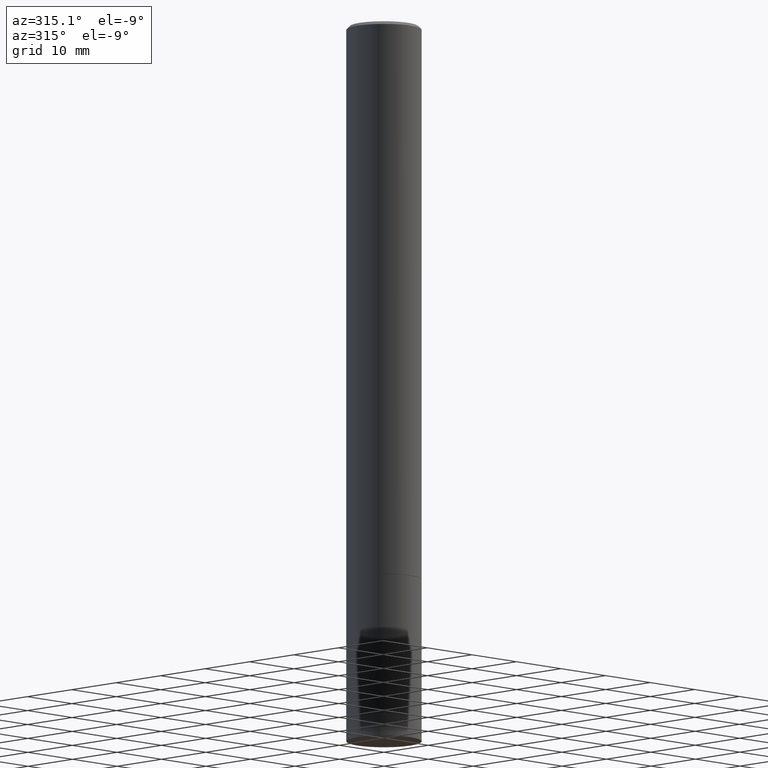
[diagram: clean part render]
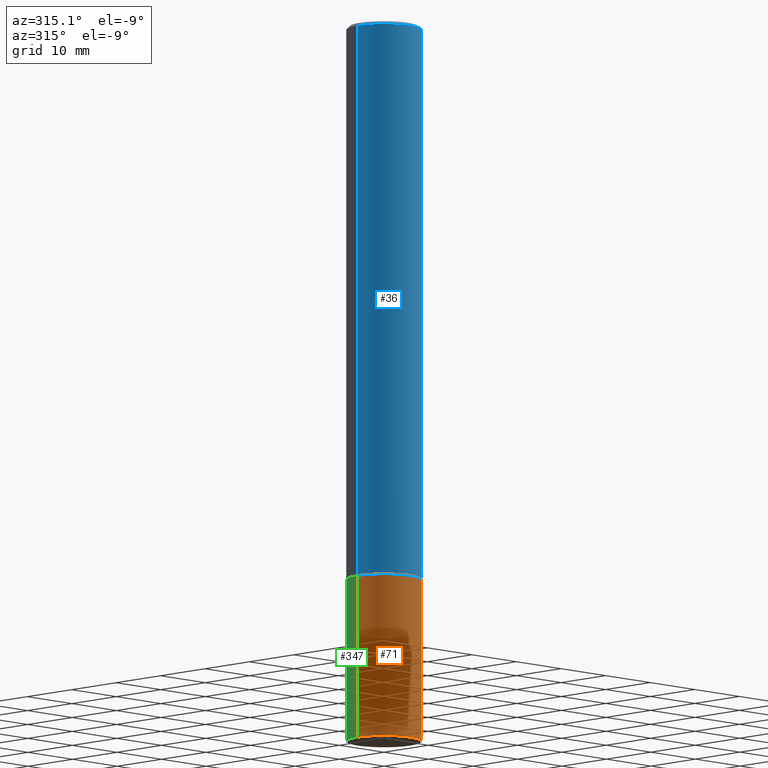
[diagram: same view with three faces highlighted in distinct colors, each labeled with its STEP entity id]
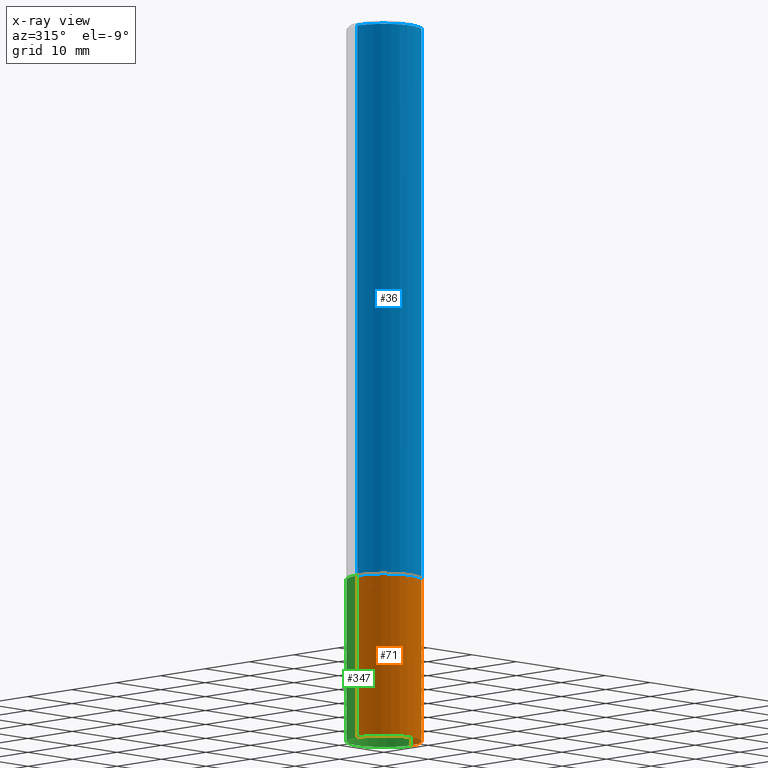
[diagram: x-ray of the same camera — body ghosted, the three highlighted faces saturated]
A machine part, auxiliary view with three faces highlighted in distinct colors.
The next image is the same camera in x-ray (body ghosted, the three faces saturated) — at least one of them is partly hidden behind the body in this view.
Their STEP definitions:

[orange] entity #71 — the highlighted cylindrical surface (partial cylindrical patch) has radius 5.9995 mm, axis along (-0, 0, 1).
#15 = CARTESIAN_POINT ( 'NONE',  ( -0.2361999999999999933, -1.234278881866094703E-14, -4.527599999999999625 ) ) ;
#21 = DIRECTION ( 'NONE',  ( -2.445468806185136877E-29, 3.491481338843145188E-15, 1.000000000000000000 ) ) ;
#43 = LINE ( 'NONE', #97, #351 ) ;
#45 = DIRECTION ( 'NONE',  ( -2.445468806185136877E-29, 3.491481338843145188E-15, 1.000000000000000000 ) ) ;
#47 = CYLINDRICAL_SURFACE ( 'NONE', #201, 0.2361999999999999933 ) ;
#54 = LINE ( 'NONE', #79, #205 ) ;
#64 = DIRECTION ( 'NONE',  ( 1.000000000000000000, -6.982962677686265133E-15, 0.000000000000000000 ) ) ;
#68 = DIRECTION ( 'NONE',  ( 1.000000000000000000, -6.982962677686265133E-15, 0.000000000000000000 ) ) ;
#71 = ADVANCED_FACE ( 'NONE', ( #267 ), #47, .T. ) ;
#79 = CARTESIAN_POINT ( 'NONE',  ( 0.2361999999999999933, -1.649375784469496131E-15, 1.151752954443000088E-29 ) ) ;
#82 = VERTEX_POINT ( 'NONE', #204 ) ;
#97 = CARTESIAN_POINT ( 'NONE',  ( -0.2361999999999999933, 1.678301941865356591E-15, -1.161852468318208757E-29 ) ) ;
#100 = DIRECTION ( 'NONE',  ( -2.445468806185136597E-29, 3.491481338843145583E-15, 1.000000000000000000 ) ) ;
#110 = CIRCLE ( 'NONE', #297, 0.2361999999999999933 ) ;
#116 = EDGE_CURVE ( 'NONE', #359, #163, #110, .T. ) ;
#160 = VERTEX_POINT ( 'NONE', #295 ) ;
#163 = VERTEX_POINT ( 'NONE', #329 ) ;
#165 = ORIENTED_EDGE ( 'NONE', *, *, #116, .T. ) ;
#173 = ORIENTED_EDGE ( 'NONE', *, *, #237, .T. ) ;
#186 = CARTESIAN_POINT ( 'NONE',  ( 0.000000000000000000, 0.000000000000000000, 0.000000000000000000 ) ) ;
#188 = DIRECTION ( 'NONE',  ( 1.000000000000000000, -6.982962677686266711E-15, 4.876176775795936353E-29 ) ) ;
#189 = AXIS2_PLACEMENT_3D ( 'NONE', #328, #100, #64 ) ;
#193 = ORIENTED_EDGE ( 'NONE', *, *, #354, .F. ) ;
#201 = AXIS2_PLACEMENT_3D ( 'NONE', #186, #244, #188 ) ;
#204 = CARTESIAN_POINT ( 'NONE',  ( 0.2361999999999999933, -1.388352639577587632E-14, -3.503999999999999559 ) ) ;
#205 = VECTOR ( 'NONE', #21, 39.37007874015748143 ) ;
#209 = DIRECTION ( 'NONE',  ( -2.445468806185136597E-29, 3.491481338843145583E-15, 1.000000000000000000 ) ) ;
#237 = EDGE_CURVE ( 'NONE', #163, #82, #54, .T. ) ;
#238 = CARTESIAN_POINT ( 'NONE',  ( 1.107210456688382298E-28, -1.580803090974622389E-14, -4.527599999999999625 ) ) ;
#244 = DIRECTION ( 'NONE',  ( -2.445468806185136597E-29, 3.491481338843145583E-15, 1.000000000000000000 ) ) ;
#257 = ORIENTED_EDGE ( 'NONE', *, *, #335, .F. ) ;
#260 = EDGE_LOOP ( 'NONE', ( #193, #165, #173, #257 ) ) ;
#267 = FACE_OUTER_BOUND ( 'NONE', #260, .T. ) ;
#293 = CIRCLE ( 'NONE', #189, 0.2361999999999999933 ) ;
#295 = CARTESIAN_POINT ( 'NONE',  ( -0.2361999999999999933, -1.234278881866094703E-14, -3.503999999999999559 ) ) ;
#297 = AXIS2_PLACEMENT_3D ( 'NONE', #238, #209, #68 ) ;
#328 = CARTESIAN_POINT ( 'NONE',  ( 8.568922696872717137E-29, -1.223415061130638137E-14, -3.503999999999999559 ) ) ;
#329 = CARTESIAN_POINT ( 'NONE',  ( 0.2361999999999999933, -1.745740669421572042E-14, -4.527599999999999625 ) ) ;
#335 = EDGE_CURVE ( 'NONE', #160, #82, #293, .T. ) ;
#351 = VECTOR ( 'NONE', #45, 39.37007874015748143 ) ;
#354 = EDGE_CURVE ( 'NONE', #359, #160, #43, .T. ) ;
#359 = VERTEX_POINT ( 'NONE', #15 ) ;

[blue] entity #36 — the highlighted cylindrical surface (partial cylindrical patch) has radius 5.9995 mm, axis along (-0, 0, 1).
#7 = LINE ( 'NONE', #111, #307 ) ;
#14 = CIRCLE ( 'NONE', #133, 0.2361999999999999933 ) ;
#24 = EDGE_LOOP ( 'NONE', ( #275, #115, #252, #57 ) ) ;
#25 = EDGE_CURVE ( 'NONE', #357, #364, #7, .T. ) ;
#36 = ADVANCED_FACE ( 'NONE', ( #69 ), #208, .T. ) ;
#38 = CARTESIAN_POINT ( 'NONE',  ( 0.000000000000000000, 0.000000000000000000, 0.000000000000000000 ) ) ;
#40 = CARTESIAN_POINT ( 'NONE',  ( -0.2361999999999995214, 1.579546157692629677E-15, -0.02000000000000006287 ) ) ;
#57 = ORIENTED_EDGE ( 'NONE', *, *, #268, .F. ) ;
#69 = FACE_OUTER_BOUND ( 'NONE', #24, .T. ) ;
#73 = VECTOR ( 'NONE', #317, 39.37007874015748143 ) ;
#89 = CARTESIAN_POINT ( 'NONE',  ( -0.2361999999999997712, 1.678301941865355014E-15, -1.161852468318207636E-29 ) ) ;
#104 = DIRECTION ( 'NONE',  ( -2.445468806185136597E-29, 3.491481338843145583E-15, 1.000000000000000000 ) ) ;
#111 = CARTESIAN_POINT ( 'NONE',  ( 0.2361999999999997712, -1.649375784469494553E-15, 1.151752954442998827E-29 ) ) ;
#112 = DIRECTION ( 'NONE',  ( -2.445468806185136877E-29, 3.491481338843145188E-15, 1.000000000000000000 ) ) ;
#113 = AXIS2_PLACEMENT_3D ( 'NONE', #38, #145, #146 ) ;
#115 = ORIENTED_EDGE ( 'NONE', *, *, #360, .T. ) ;
#117 = EDGE_CURVE ( 'NONE', #136, #123, #184, .T. ) ;
#118 = CARTESIAN_POINT ( 'NONE',  ( 8.566477228066533777E-29, -1.223065912996753836E-14, -3.502999999999999670 ) ) ;
#121 = CARTESIAN_POINT ( 'NONE',  ( 0.2361999999999995214, -1.690279253850495418E-15, -0.02000000000000006287 ) ) ;
#123 = VERTEX_POINT ( 'NONE', #40 ) ;
#133 = AXIS2_PLACEMENT_3D ( 'NONE', #118, #241, #185 ) ;
#136 = VERTEX_POINT ( 'NONE', #239 ) ;
#145 = DIRECTION ( 'NONE',  ( -2.445468806185136597E-29, 3.491481338843145583E-15, 1.000000000000000000 ) ) ;
#146 = DIRECTION ( 'NONE',  ( 1.000000000000000000, -6.982962677686266711E-15, 4.876176775795935232E-29 ) ) ;
#156 = CARTESIAN_POINT ( 'NONE',  ( 0.2361999999999999933, -1.388003491443703489E-14, -3.502999999999999670 ) ) ;
#161 = CARTESIAN_POINT ( 'NONE',  ( 4.890937612370288923E-31, -6.982962677686312563E-17, -0.02000000000000006287 ) ) ;
#184 = LINE ( 'NONE', #89, #73 ) ;
#185 = DIRECTION ( 'NONE',  ( 1.000000000000000000, -6.982962677686265133E-15, 0.000000000000000000 ) ) ;
#208 = CYLINDRICAL_SURFACE ( 'NONE', #113, 0.2361999999999997712 ) ;
#234 = AXIS2_PLACEMENT_3D ( 'NONE', #161, #104, #340 ) ;
#239 = CARTESIAN_POINT ( 'NONE',  ( -0.2362000000000000210, -4.471942436506837337E-15, -3.502999999999999670 ) ) ;
#241 = DIRECTION ( 'NONE',  ( -2.445468806185136597E-29, 3.491481338843145583E-15, 1.000000000000000000 ) ) ;
#243 = CIRCLE ( 'NONE', #234, 0.2361999999999995214 ) ;
#252 = ORIENTED_EDGE ( 'NONE', *, *, #25, .T. ) ;
#268 = EDGE_CURVE ( 'NONE', #123, #364, #243, .T. ) ;
#275 = ORIENTED_EDGE ( 'NONE', *, *, #117, .F. ) ;
#307 = VECTOR ( 'NONE', #112, 39.37007874015748143 ) ;
#317 = DIRECTION ( 'NONE',  ( -2.445468806185136877E-29, 3.491481338843145188E-15, 1.000000000000000000 ) ) ;
#340 = DIRECTION ( 'NONE',  ( 1.000000000000000000, -6.982962677686266711E-15, 0.000000000000000000 ) ) ;
#357 = VERTEX_POINT ( 'NONE', #156 ) ;
#360 = EDGE_CURVE ( 'NONE', #136, #357, #14, .T. ) ;
#364 = VERTEX_POINT ( 'NONE', #121 ) ;

[green] entity #347 — the highlighted cylindrical surface (partial cylindrical patch) has radius 5.9995 mm, axis along (-0, 0, 1).
#10 = FACE_OUTER_BOUND ( 'NONE', #305, .T. ) ;
#11 = DIRECTION ( 'NONE',  ( 1.000000000000000000, -6.982962677686266711E-15, 4.876176775795936353E-29 ) ) ;
#15 = CARTESIAN_POINT ( 'NONE',  ( -0.2361999999999999933, -1.234278881866094703E-14, -4.527599999999999625 ) ) ;
#21 = DIRECTION ( 'NONE',  ( -2.445468806185136877E-29, 3.491481338843145188E-15, 1.000000000000000000 ) ) ;
#26 = AXIS2_PLACEMENT_3D ( 'NONE', #190, #330, #298 ) ;
#28 = CARTESIAN_POINT ( 'NONE',  ( 1.107210456688382298E-28, -1.580803090974622389E-14, -4.527599999999999625 ) ) ;
#43 = LINE ( 'NONE', #97, #351 ) ;
#45 = DIRECTION ( 'NONE',  ( -2.445468806185136877E-29, 3.491481338843145188E-15, 1.000000000000000000 ) ) ;
#54 = LINE ( 'NONE', #79, #205 ) ;
#79 = CARTESIAN_POINT ( 'NONE',  ( 0.2361999999999999933, -1.649375784469496131E-15, 1.151752954443000088E-29 ) ) ;
#82 = VERTEX_POINT ( 'NONE', #204 ) ;
#94 = DIRECTION ( 'NONE',  ( -2.445468806185136597E-29, 3.491481338843145583E-15, 1.000000000000000000 ) ) ;
#97 = CARTESIAN_POINT ( 'NONE',  ( -0.2361999999999999933, 1.678301941865356591E-15, -1.161852468318208757E-29 ) ) ;
#120 = CIRCLE ( 'NONE', #349, 0.2361999999999999933 ) ;
#128 = DIRECTION ( 'NONE',  ( -2.445468806185136597E-29, 3.491481338843145583E-15, 1.000000000000000000 ) ) ;
#154 = AXIS2_PLACEMENT_3D ( 'NONE', #292, #94, #11 ) ;
#160 = VERTEX_POINT ( 'NONE', #295 ) ;
#163 = VERTEX_POINT ( 'NONE', #329 ) ;
#190 = CARTESIAN_POINT ( 'NONE',  ( 8.568922696872717137E-29, -1.223415061130638137E-14, -3.503999999999999559 ) ) ;
#200 = ORIENTED_EDGE ( 'NONE', *, *, #242, .T. ) ;
#204 = CARTESIAN_POINT ( 'NONE',  ( 0.2361999999999999933, -1.388352639577587632E-14, -3.503999999999999559 ) ) ;
#205 = VECTOR ( 'NONE', #21, 39.37007874015748143 ) ;
#222 = EDGE_CURVE ( 'NONE', #82, #160, #361, .T. ) ;
#237 = EDGE_CURVE ( 'NONE', #163, #82, #54, .T. ) ;
#242 = EDGE_CURVE ( 'NONE', #163, #359, #120, .T. ) ;
#256 = DIRECTION ( 'NONE',  ( 1.000000000000000000, -6.982962677686265133E-15, 0.000000000000000000 ) ) ;
#282 = ORIENTED_EDGE ( 'NONE', *, *, #222, .F. ) ;
#292 = CARTESIAN_POINT ( 'NONE',  ( 0.000000000000000000, 0.000000000000000000, 0.000000000000000000 ) ) ;
#295 = CARTESIAN_POINT ( 'NONE',  ( -0.2361999999999999933, -1.234278881866094703E-14, -3.503999999999999559 ) ) ;
#298 = DIRECTION ( 'NONE',  ( 1.000000000000000000, -6.982962677686265133E-15, 0.000000000000000000 ) ) ;
#305 = EDGE_LOOP ( 'NONE', ( #200, #331, #282, #366 ) ) ;
#329 = CARTESIAN_POINT ( 'NONE',  ( 0.2361999999999999933, -1.745740669421572042E-14, -4.527599999999999625 ) ) ;
#330 = DIRECTION ( 'NONE',  ( -2.445468806185136597E-29, 3.491481338843145583E-15, 1.000000000000000000 ) ) ;
#331 = ORIENTED_EDGE ( 'NONE', *, *, #354, .T. ) ;
#347 = ADVANCED_FACE ( 'NONE', ( #10 ), #352, .T. ) ;
#349 = AXIS2_PLACEMENT_3D ( 'NONE', #28, #128, #256 ) ;
#351 = VECTOR ( 'NONE', #45, 39.37007874015748143 ) ;
#352 = CYLINDRICAL_SURFACE ( 'NONE', #154, 0.2361999999999999933 ) ;
#354 = EDGE_CURVE ( 'NONE', #359, #160, #43, .T. ) ;
#359 = VERTEX_POINT ( 'NONE', #15 ) ;
#361 = CIRCLE ( 'NONE', #26, 0.2361999999999999933 ) ;
#366 = ORIENTED_EDGE ( 'NONE', *, *, #237, .F. ) ;